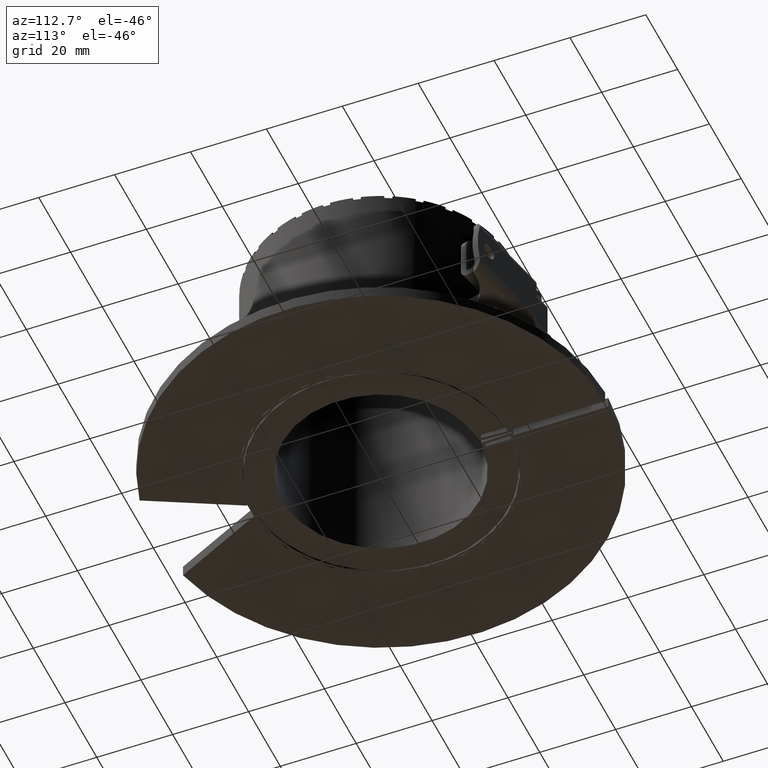
[diagram: clean part render]
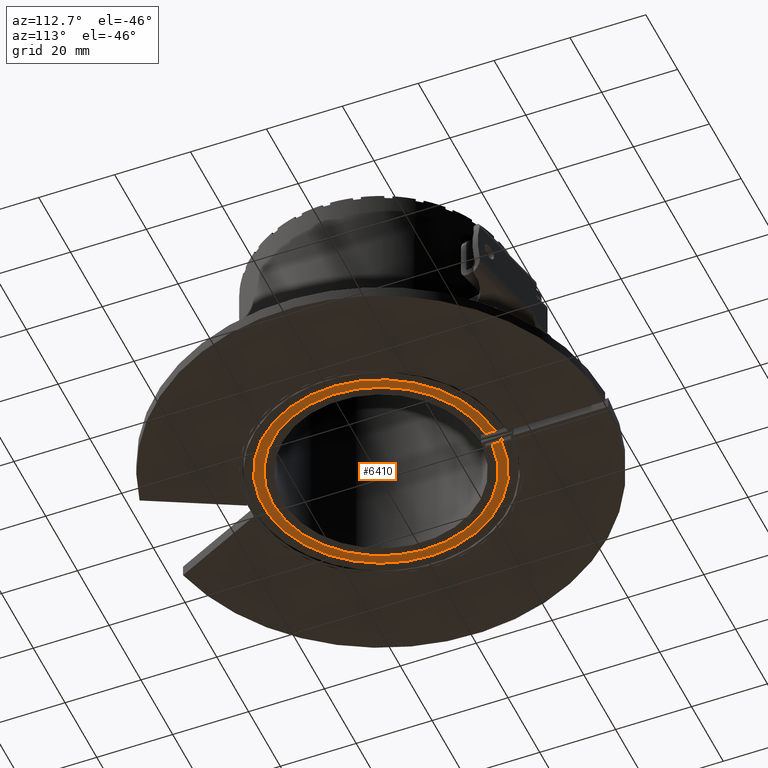
[diagram: same view with one face highlighted and labeled with its STEP entity id]
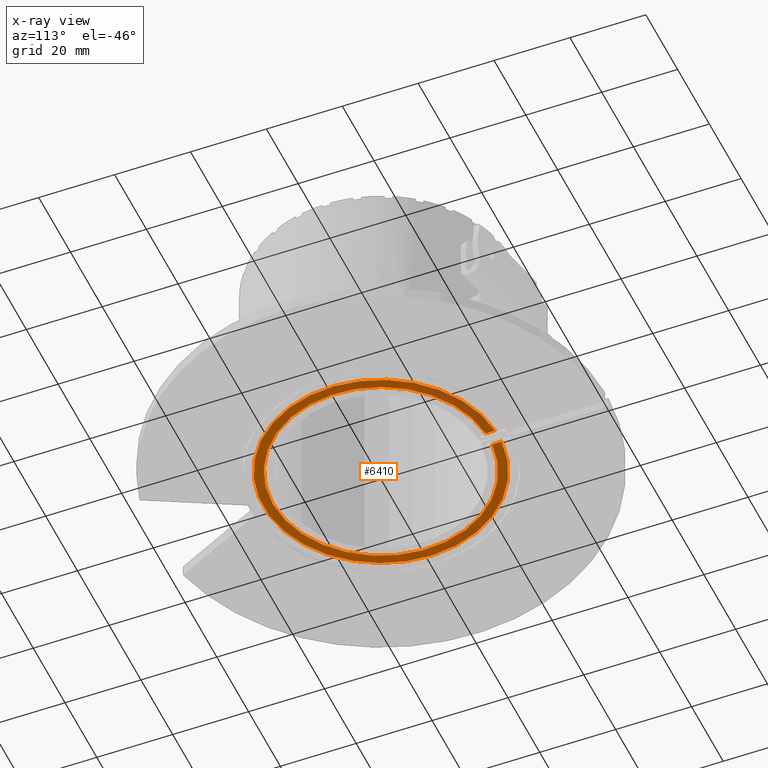
[diagram: x-ray of the same camera — body ghosted, the highlighted face saturated]
A machine part, auxiliary view. The second image highlights one B-rep face of the part: STEP entity #6410.
The next image is the same camera in x-ray: the body ghosted, the highlighted face saturated — about 0% of this face is hidden behind the body in this view.
In plain terms, the highlighted planar face has unit normal (0, 0, 1).
Its self-contained STEP definition (entity closure, byte-faithful):
#6246=CARTESIAN_POINT('',(1.999999999999996,28.429737951659,-29.949999999999996));
#6247=VERTEX_POINT('',#6246);
#6278=CARTESIAN_POINT('',(-2.000000000000004,28.429737951659,-29.949999999999996));
#6279=VERTEX_POINT('',#6278);
#6303=CARTESIAN_POINT('',(0.0,0.0,-29.949999999999996));
#6304=DIRECTION('',(0.0,0.0,-1.0));
#6305=DIRECTION('',(0.070175438596491,-0.997534664970491,0.0));
#6306=AXIS2_PLACEMENT_3D('',#6303,#6304,#6305);
#6307=CIRCLE('',#6306,28.499999999999996);
#6308=EDGE_CURVE('',#6247,#6279,#6307,.T.);
#6345=CARTESIAN_POINT('',(-2.000000000000004,30.935416596516042,-29.949999999999996));
#6346=VERTEX_POINT('',#6345);
#6347=CARTESIAN_POINT('',(-2.000000000000004,28.429737951659,-29.949999999999996));
#6348=DIRECTION('',(0.0,1.0,0.0));
#6349=VECTOR('',#6348,2.505678644857039);
#6350=LINE('',#6347,#6349);
#6351=EDGE_CURVE('',#6279,#6346,#6350,.T.);
#6375=CARTESIAN_POINT('',(1.999999999999996,30.935416596516042,-29.949999999999996));
#6376=VERTEX_POINT('',#6375);
#6383=CARTESIAN_POINT('',(1.999999999999996,30.935416596516042,-29.949999999999996));
#6384=DIRECTION('',(0.0,-1.0,0.0));
#6385=VECTOR('',#6384,2.505678644857042);
#6386=LINE('',#6383,#6385);
#6387=EDGE_CURVE('',#6376,#6247,#6386,.T.);
#6393=CARTESIAN_POINT('',(-1.402659E-015,2.502955698770178,-29.949999999999996));
#6394=DIRECTION('',(0.0,0.0,1.0));
#6395=DIRECTION('',(1.0,0.0,0.0));
#6396=AXIS2_PLACEMENT_3D('',#6393,#6394,#6395);
#6397=PLANE('',#6396);
#6398=ORIENTED_EDGE('',*,*,#6387,.F.);
#6399=CARTESIAN_POINT('',(0.0,0.0,-29.949999999999996));
#6400=DIRECTION('',(0.0,0.0,-1.0));
#6401=DIRECTION('',(0.064516129032258,-0.997916664403743,0.0));
#6402=AXIS2_PLACEMENT_3D('',#6399,#6400,#6401);
#6403=CIRCLE('',#6402,31.000000000000004);
#6404=EDGE_CURVE('',#6376,#6346,#6403,.T.);
#6405=ORIENTED_EDGE('',*,*,#6404,.T.);
#6406=ORIENTED_EDGE('',*,*,#6351,.F.);
#6407=ORIENTED_EDGE('',*,*,#6308,.F.);
#6408=EDGE_LOOP('',(#6398,#6405,#6406,#6407));
#6409=FACE_OUTER_BOUND('',#6408,.T.);
#6410=ADVANCED_FACE('',(#6409),#6397,.F.);